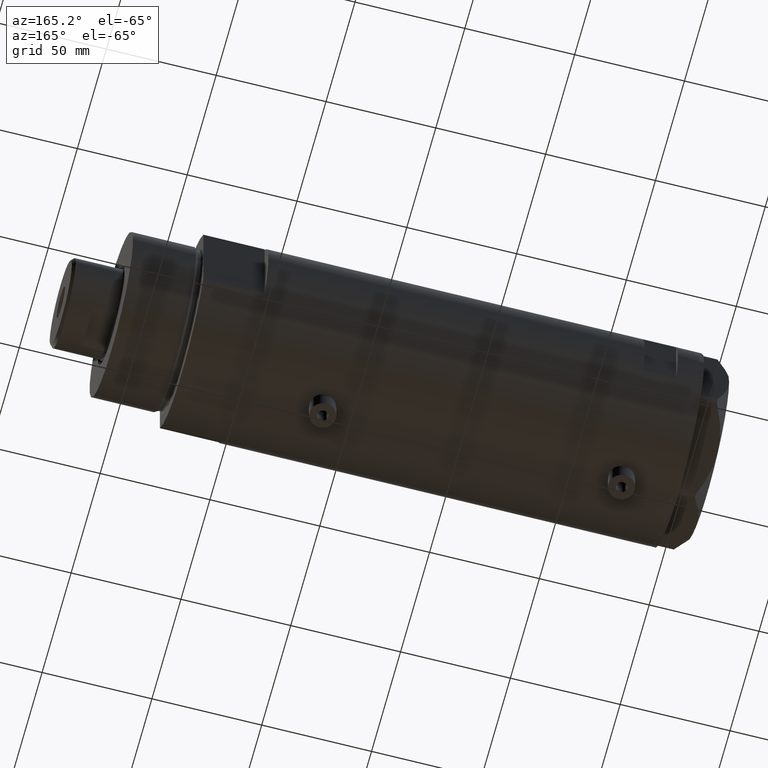
[diagram: clean part render]
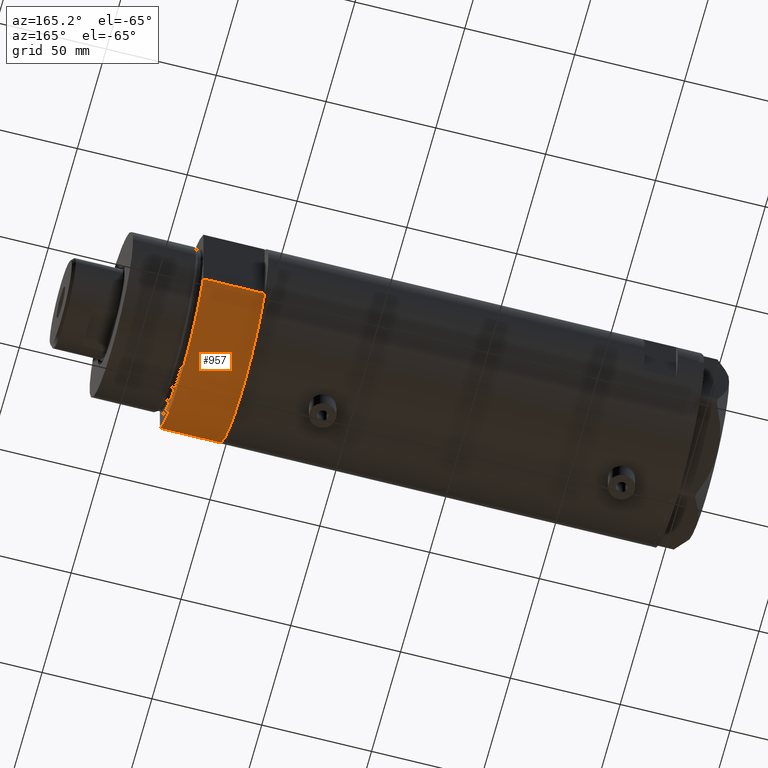
[diagram: same view with one face highlighted and labeled with its STEP entity id]
A machine part, auxiliary view. The second image highlights one B-rep face of the part: STEP entity #957.
In plain terms, the highlighted cylindrical surface (partial cylindrical patch) has radius 44 mm, axis along (-1, -0, 0).
Its self-contained STEP definition (entity closure, byte-faithful):
#30 = DIRECTION ( 'NONE',  ( 0.000000000000000000, 0.000000000000000000, 1.000000000000000000 ) ) ;
#157 = DIRECTION ( 'NONE',  ( -0.000000000000000000, -0.000000000000000000, -1.000000000000000000 ) ) ;
#245 = VECTOR ( 'NONE', #2930, 1000.000000000000000 ) ;
#270 = EDGE_LOOP ( 'NONE', ( #2860, #1481, #4519, #4701 ) ) ;
#293 = EDGE_CURVE ( 'NONE', #1024, #456, #941, .T. ) ;
#360 = DIRECTION ( 'NONE',  ( -0.000000000000000000, -0.000000000000000000, 1.000000000000000000 ) ) ;
#456 = VERTEX_POINT ( 'NONE', #1865 ) ;
#941 = CIRCLE ( 'NONE', #4700, 44.00000000000000000 ) ;
#957 = ADVANCED_FACE ( 'NONE', ( #1389 ), #2872, .T. ) ;
#1016 = EDGE_CURVE ( 'NONE', #456, #1520, #3004, .T. ) ;
#1017 = CARTESIAN_POINT ( 'NONE',  ( 0.000000000000000000, 0.000000000000000000, 27.89999999999999858 ) ) ;
#1024 = VERTEX_POINT ( 'NONE', #4115 ) ;
#1115 = AXIS2_PLACEMENT_3D ( 'NONE', #1017, #157, #3145 ) ;
#1389 = FACE_OUTER_BOUND ( 'NONE', #270, .T. ) ;
#1481 = ORIENTED_EDGE ( 'NONE', *, *, #4704, .F. ) ;
#1520 = VERTEX_POINT ( 'NONE', #2567 ) ;
#1557 = DIRECTION ( 'NONE',  ( 1.000000000000000000, 0.000000000000000000, 0.000000000000000000 ) ) ;
#1675 = VECTOR ( 'NONE', #360, 1000.000000000000000 ) ;
#1820 = CARTESIAN_POINT ( 'NONE',  ( 23.01629857296780557, -37.50000000000000000, 0.000000000000000000 ) ) ;
#1843 = DIRECTION ( 'NONE',  ( 1.000000000000000000, 0.000000000000000000, 0.000000000000000000 ) ) ;
#1865 = CARTESIAN_POINT ( 'NONE',  ( 23.01629857296780557, 37.50000000000000000, 0.000000000000000000 ) ) ;
#2567 = CARTESIAN_POINT ( 'NONE',  ( 23.01629857296780557, 37.50000000000000000, 27.89999999999999858 ) ) ;
#2860 = ORIENTED_EDGE ( 'NONE', *, *, #3090, .F. ) ;
#2872 = CYLINDRICAL_SURFACE ( 'NONE', #1115, 44.00000000000000000 ) ;
#2930 = DIRECTION ( 'NONE',  ( -0.000000000000000000, -0.000000000000000000, 1.000000000000000000 ) ) ;
#2936 = LINE ( 'NONE', #1820, #1675 ) ;
#2952 = CARTESIAN_POINT ( 'NONE',  ( 0.000000000000000000, 0.000000000000000000, 0.000000000000000000 ) ) ;
#3004 = LINE ( 'NONE', #3646, #245 ) ;
#3090 = EDGE_CURVE ( 'NONE', #3730, #1520, #4010, .T. ) ;
#3145 = DIRECTION ( 'NONE',  ( -1.000000000000000000, 0.000000000000000000, 0.000000000000000000 ) ) ;
#3386 = CARTESIAN_POINT ( 'NONE',  ( 0.000000000000000000, 0.000000000000000000, 27.89999999999999858 ) ) ;
#3646 = CARTESIAN_POINT ( 'NONE',  ( 23.01629857296780557, 37.50000000000000000, 0.000000000000000000 ) ) ;
#3694 = DIRECTION ( 'NONE',  ( 0.000000000000000000, 0.000000000000000000, 1.000000000000000000 ) ) ;
#3730 = VERTEX_POINT ( 'NONE', #4213 ) ;
#4010 = CIRCLE ( 'NONE', #4488, 44.00000000000000000 ) ;
#4115 = CARTESIAN_POINT ( 'NONE',  ( 23.01629857296780557, -37.50000000000000000, 0.000000000000000000 ) ) ;
#4213 = CARTESIAN_POINT ( 'NONE',  ( 23.01629857296780557, -37.50000000000000000, 27.89999999999999858 ) ) ;
#4488 = AXIS2_PLACEMENT_3D ( 'NONE', #3386, #30, #1557 ) ;
#4519 = ORIENTED_EDGE ( 'NONE', *, *, #293, .T. ) ;
#4700 = AXIS2_PLACEMENT_3D ( 'NONE', #2952, #3694, #1843 ) ;
#4701 = ORIENTED_EDGE ( 'NONE', *, *, #1016, .T. ) ;
#4704 = EDGE_CURVE ( 'NONE', #1024, #3730, #2936, .T. ) ;